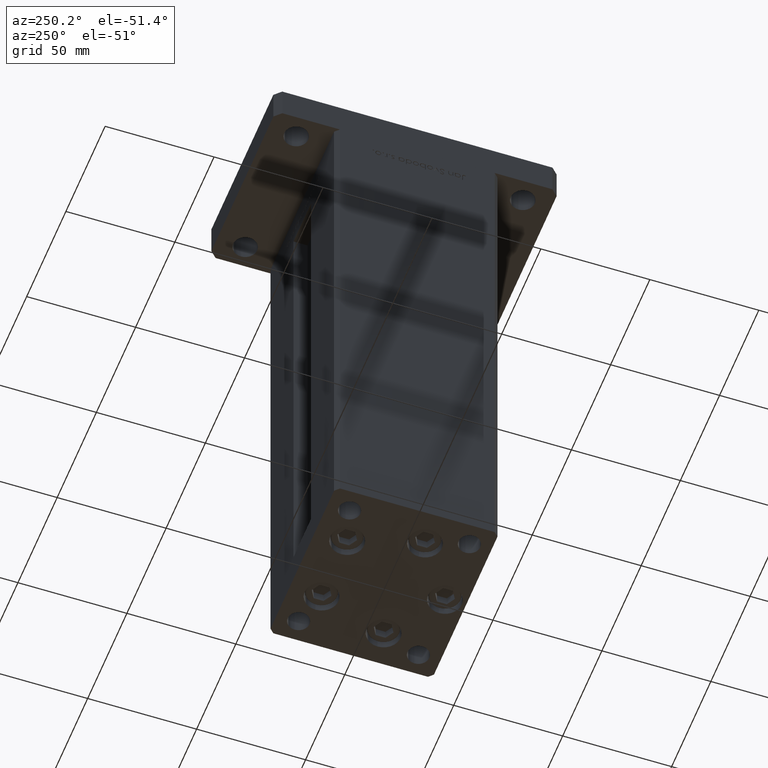
[diagram: clean part render]
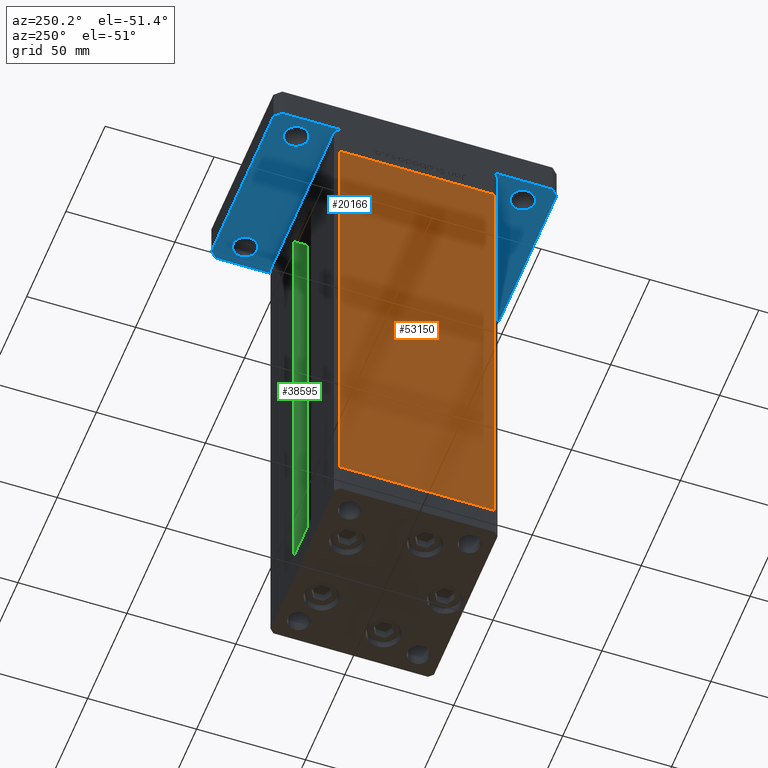
[diagram: same view with three faces highlighted in distinct colors, each labeled with its STEP entity id]
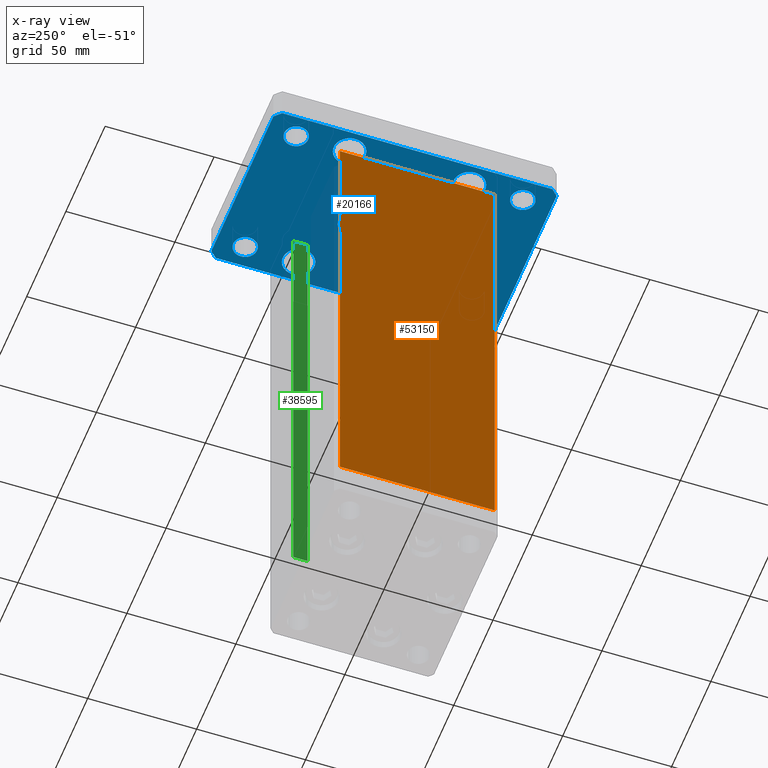
[diagram: x-ray of the same camera — body ghosted, the three highlighted faces saturated]
A machine part, auxiliary view with three faces highlighted in distinct colors.
The next image is the same camera in x-ray (body ghosted, the three faces saturated) — at least one of them is partly hidden behind the body in this view.
Their STEP definitions:

[orange] entity #53150 — the highlighted planar face has unit normal (1, 0, 0).
#1494 = LINE ( 'NONE', #10175, #15396 ) ;
#5783 = VERTEX_POINT ( 'NONE', #16046 ) ;
#6851 = DIRECTION ( 'NONE',  ( 1.000000000000000000, 2.931927001650941360E-16, -0.000000000000000000 ) ) ;
#10175 = CARTESIAN_POINT ( 'NONE',  ( -42.49999999999998579, -35.50000000000000711, 218.5000000000000000 ) ) ;
#10752 = VERTEX_POINT ( 'NONE', #35012 ) ;
#10982 = AXIS2_PLACEMENT_3D ( 'NONE', #14720, #6851, #51852 ) ;
#11081 = DIRECTION ( 'NONE',  ( 2.931927001650941360E-16, -1.000000000000000000, 0.000000000000000000 ) ) ;
#13065 = CARTESIAN_POINT ( 'NONE',  ( -42.50000000000000711, 35.50000000000001421, 218.5000000000000000 ) ) ;
#14114 = EDGE_CURVE ( 'NONE', #10752, #5783, #32452, .T. ) ;
#14720 = CARTESIAN_POINT ( 'NONE',  ( -42.50000000000000711, 35.50000000000001421, 218.5000000000000000 ) ) ;
#15396 = VECTOR ( 'NONE', #18027, 1000.000000000000000 ) ;
#15418 = CARTESIAN_POINT ( 'NONE',  ( -42.50000000000000711, 35.50000000000001421, 0.000000000000000000 ) ) ;
#16046 = CARTESIAN_POINT ( 'NONE',  ( -42.49999999999998579, -35.50000000000000711, 0.000000000000000000 ) ) ;
#17189 = VECTOR ( 'NONE', #11081, 1000.000000000000000 ) ;
#18027 = DIRECTION ( 'NONE',  ( -0.000000000000000000, -0.000000000000000000, -1.000000000000000000 ) ) ;
#18493 = DIRECTION ( 'NONE',  ( -0.000000000000000000, -0.000000000000000000, -1.000000000000000000 ) ) ;
#18541 = EDGE_CURVE ( 'NONE', #42156, #26485, #52017, .T. ) ;
#20539 = DIRECTION ( 'NONE',  ( 2.931927001650941360E-16, -1.000000000000000000, 0.000000000000000000 ) ) ;
#21350 = CARTESIAN_POINT ( 'NONE',  ( -42.50000000000000711, 35.50000000000001421, 218.5000000000000000 ) ) ;
#23240 = ORIENTED_EDGE ( 'NONE', *, *, #38922, .T. ) ;
#26352 = CARTESIAN_POINT ( 'NONE',  ( -42.50000000000000711, 35.50000000000001421, 218.5000000000000000 ) ) ;
#26485 = VERTEX_POINT ( 'NONE', #46622 ) ;
#27445 = PLANE ( 'NONE',  #10982 ) ;
#29875 = ORIENTED_EDGE ( 'NONE', *, *, #14114, .T. ) ;
#32452 = LINE ( 'NONE', #15418, #17189 ) ;
#35012 = CARTESIAN_POINT ( 'NONE',  ( -42.50000000000000711, 35.50000000000001421, 0.000000000000000000 ) ) ;
#38117 = ORIENTED_EDGE ( 'NONE', *, *, #18541, .F. ) ;
#38922 = EDGE_CURVE ( 'NONE', #42156, #10752, #43183, .T. ) ;
#40191 = FACE_OUTER_BOUND ( 'NONE', #47179, .T. ) ;
#42156 = VERTEX_POINT ( 'NONE', #13065 ) ;
#43183 = LINE ( 'NONE', #26352, #45489 ) ;
#44623 = EDGE_CURVE ( 'NONE', #26485, #5783, #1494, .T. ) ;
#45008 = VECTOR ( 'NONE', #20539, 1000.000000000000000 ) ;
#45489 = VECTOR ( 'NONE', #18493, 1000.000000000000000 ) ;
#46137 = ORIENTED_EDGE ( 'NONE', *, *, #44623, .F. ) ;
#46622 = CARTESIAN_POINT ( 'NONE',  ( -42.49999999999998579, -35.50000000000000711, 218.5000000000000000 ) ) ;
#47179 = EDGE_LOOP ( 'NONE', ( #29875, #46137, #38117, #23240 ) ) ;
#51852 = DIRECTION ( 'NONE',  ( -2.931927001650941360E-16, 1.000000000000000000, 0.000000000000000000 ) ) ;
#52017 = LINE ( 'NONE', #21350, #45008 ) ;
#53150 = ADVANCED_FACE ( 'NONE', ( #40191 ), #27445, .F. ) ;

[blue] entity #20166 — the highlighted planar face has unit normal (0, 0, 1).
#129 = CARTESIAN_POINT ( 'NONE',  ( 0.000000000000000000, 0.000000000000000000, 0.000000000000000000 ) ) ;
#511 = CIRCLE ( 'NONE', #37722, 7.249999999999999112 ) ;
#583 = LINE ( 'NONE', #32823, #12419 ) ;
#751 = VERTEX_POINT ( 'NONE', #36892 ) ;
#878 = ORIENTED_EDGE ( 'NONE', *, *, #41326, .T. ) ;
#1370 = CARTESIAN_POINT ( 'NONE',  ( -32.50000000000000000, 52.00000000000000000, 0.000000000000000000 ) ) ;
#2012 = CARTESIAN_POINT ( 'NONE',  ( 32.50000000000000000, -27.50000000000000000, 0.000000000000000000 ) ) ;
#2030 = AXIS2_PLACEMENT_3D ( 'NONE', #25977, #42527, #21916 ) ;
#2180 = FACE_BOUND ( 'NONE', #7526, .T. ) ;
#2299 = DIRECTION ( 'NONE',  ( -1.000000000000000000, -3.513364001978340512E-16, 0.000000000000000000 ) ) ;
#2374 = ORIENTED_EDGE ( 'NONE', *, *, #40247, .F. ) ;
#2453 = PLANE ( 'NONE',  #43341 ) ;
#2780 = DIRECTION ( 'NONE',  ( 1.000000000000000000, 1.405345600791337191E-15, 0.000000000000000000 ) ) ;
#2979 = FACE_BOUND ( 'NONE', #14745, .T. ) ;
#3331 = VERTEX_POINT ( 'NONE', #25314 ) ;
#3583 = VERTEX_POINT ( 'NONE', #5915 ) ;
#3649 = CARTESIAN_POINT ( 'NONE',  ( -25.25000000000000000, -27.50000000000000000, 0.000000000000000000 ) ) ;
#3859 = CARTESIAN_POINT ( 'NONE',  ( 32.50000000000000000, 27.50000000000000000, 0.000000000000000000 ) ) ;
#4002 = CIRCLE ( 'NONE', #26475, 5.499999999999991118 ) ;
#4059 = DIRECTION ( 'NONE',  ( 0.000000000000000000, 0.000000000000000000, 1.000000000000000000 ) ) ;
#4206 = DIRECTION ( 'NONE',  ( 0.000000000000000000, 0.000000000000000000, 1.000000000000000000 ) ) ;
#4577 = CARTESIAN_POINT ( 'NONE',  ( 32.50000000000000000, 51.99999999999999289, 0.000000000000000000 ) ) ;
#4797 = VERTEX_POINT ( 'NONE', #19029 ) ;
#4875 = EDGE_CURVE ( 'NONE', #751, #39949, #7366, .T. ) ;
#4877 = ORIENTED_EDGE ( 'NONE', *, *, #48344, .F. ) ;
#5177 = CARTESIAN_POINT ( 'NONE',  ( 32.50000000000000000, 27.50000000000000000, 0.000000000000000000 ) ) ;
#5264 = ORIENTED_EDGE ( 'NONE', *, *, #12280, .T. ) ;
#5286 = ORIENTED_EDGE ( 'NONE', *, *, #9639, .T. ) ;
#5357 = VERTEX_POINT ( 'NONE', #38903 ) ;
#5788 = DIRECTION ( 'NONE',  ( 0.000000000000000000, 0.000000000000000000, 1.000000000000000000 ) ) ;
#5846 = CARTESIAN_POINT ( 'NONE',  ( 32.50000000000000000, 51.99999999999999289, 0.000000000000000000 ) ) ;
#5915 = CARTESIAN_POINT ( 'NONE',  ( -25.25000000000000711, 27.50000000000000000, 0.000000000000000000 ) ) ;
#6035 = CARTESIAN_POINT ( 'NONE',  ( 25.25000000000000000, -27.50000000000000000, 0.000000000000000000 ) ) ;
#6530 = LINE ( 'NONE', #23067, #18882 ) ;
#6637 = AXIS2_PLACEMENT_3D ( 'NONE', #12209, #4059, #16803 ) ;
#6841 = EDGE_CURVE ( 'NONE', #38908, #32571, #20290, .T. ) ;
#7049 = CARTESIAN_POINT ( 'NONE',  ( -39.75000000000000000, -27.50000000000000000, 0.000000000000000000 ) ) ;
#7189 = CIRCLE ( 'NONE', #8936, 5.499999999999994671 ) ;
#7216 = CIRCLE ( 'NONE', #2030, 5.499999999999994671 ) ;
#7363 = DIRECTION ( 'NONE',  ( -0.7071067811865417996, 0.7071067811865532349, 0.000000000000000000 ) ) ;
#7366 = LINE ( 'NONE', #19832, #41053 ) ;
#7433 = ORIENTED_EDGE ( 'NONE', *, *, #8279, .F. ) ;
#7459 = AXIS2_PLACEMENT_3D ( 'NONE', #1370, #38499, #43382 ) ;
#7526 = EDGE_LOOP ( 'NONE', ( #21143, #13021 ) ) ;
#7655 = DIRECTION ( 'NONE',  ( 0.000000000000000000, 0.000000000000000000, 1.000000000000000000 ) ) ;
#7682 = DIRECTION ( 'NONE',  ( 1.000000000000000000, 0.000000000000000000, 0.000000000000000000 ) ) ;
#7723 = ORIENTED_EDGE ( 'NONE', *, *, #42505, .T. ) ;
#7897 = DIRECTION ( 'NONE',  ( 0.7071067811865459074, 0.7071067811865491270, 0.000000000000000000 ) ) ;
#7987 = CARTESIAN_POINT ( 'NONE',  ( -20.00000000000000000, 0.000000000000000000, 0.000000000000000000 ) ) ;
#8279 = EDGE_CURVE ( 'NONE', #20764, #44886, #51537, .T. ) ;
#8936 = AXIS2_PLACEMENT_3D ( 'NONE', #38712, #39513, #18909 ) ;
#9075 = ORIENTED_EDGE ( 'NONE', *, *, #30083, .T. ) ;
#9370 = ORIENTED_EDGE ( 'NONE', *, *, #4875, .F. ) ;
#9639 = EDGE_CURVE ( 'NONE', #32571, #38908, #511, .T. ) ;
#9746 = AXIS2_PLACEMENT_3D ( 'NONE', #5846, #22383, #38918 ) ;
#9881 = ORIENTED_EDGE ( 'NONE', *, *, #28497, .F. ) ;
#10334 = FACE_BOUND ( 'NONE', #26934, .T. ) ;
#10420 = AXIS2_PLACEMENT_3D ( 'NONE', #15846, #32361, #48909 ) ;
#10438 = CARTESIAN_POINT ( 'NONE',  ( 39.50000000000002842, 65.00000000000002842, 0.000000000000000000 ) ) ;
#10521 = VERTEX_POINT ( 'NONE', #21220 ) ;
#11131 = DIRECTION ( 'NONE',  ( 1.000000000000000000, 0.000000000000000000, -0.000000000000000000 ) ) ;
#11483 = DIRECTION ( 'NONE',  ( 0.000000000000000000, 0.000000000000000000, 1.000000000000000000 ) ) ;
#12008 = EDGE_CURVE ( 'NONE', #29792, #37107, #36371, .T. ) ;
#12209 = CARTESIAN_POINT ( 'NONE',  ( -32.50000000000000711, 27.50000000000000000, 0.000000000000000000 ) ) ;
#12232 = VERTEX_POINT ( 'NONE', #46921 ) ;
#12280 = EDGE_CURVE ( 'NONE', #12998, #12232, #43838, .T. ) ;
#12419 = VECTOR ( 'NONE', #7897, 1000.000000000000114 ) ;
#12501 = DIRECTION ( 'NONE',  ( 2.238352872228137677E-16, -1.000000000000000000, 0.000000000000000000 ) ) ;
#12998 = VERTEX_POINT ( 'NONE', #38520 ) ;
#13021 = ORIENTED_EDGE ( 'NONE', *, *, #31624, .T. ) ;
#13145 = EDGE_CURVE ( 'NONE', #42723, #751, #6530, .T. ) ;
#13663 = CARTESIAN_POINT ( 'NONE',  ( -32.50000000000000711, 27.50000000000000000, 0.000000000000000000 ) ) ;
#13887 = CIRCLE ( 'NONE', #10420, 7.249999999999999112 ) ;
#13958 = CIRCLE ( 'NONE', #30400, 5.499999999999994671 ) ;
#14302 = CIRCLE ( 'NONE', #21225, 7.249999999999999112 ) ;
#14745 = EDGE_LOOP ( 'NONE', ( #7723, #48129 ) ) ;
#15500 = EDGE_LOOP ( 'NONE', ( #29601, #5264 ) ) ;
#15795 = VECTOR ( 'NONE', #7363, 1000.000000000000000 ) ;
#15846 = CARTESIAN_POINT ( 'NONE',  ( -32.50000000000000000, -27.50000000000000000, 0.000000000000000000 ) ) ;
#15999 = LINE ( 'NONE', #28993, #32467 ) ;
#16069 = ORIENTED_EDGE ( 'NONE', *, *, #24711, .F. ) ;
#16289 = VERTEX_POINT ( 'NONE', #40136 ) ;
#16432 = ORIENTED_EDGE ( 'NONE', *, *, #35455, .T. ) ;
#16622 = ORIENTED_EDGE ( 'NONE', *, *, #32818, .T. ) ;
#16796 = LINE ( 'NONE', #24935, #51559 ) ;
#16803 = DIRECTION ( 'NONE',  ( 1.000000000000000000, 0.000000000000000000, 0.000000000000000000 ) ) ;
#17476 = ORIENTED_EDGE ( 'NONE', *, *, #19976, .T. ) ;
#17729 = CARTESIAN_POINT ( 'NONE',  ( 26.99999999999998579, -52.00000000000000711, 0.000000000000000000 ) ) ;
#18097 = EDGE_LOOP ( 'NONE', ( #21216, #4877, #9370, #31308, #49154, #16069, #2374, #9881 ) ) ;
#18179 = DIRECTION ( 'NONE',  ( 1.000000000000000000, 0.000000000000000000, 0.000000000000000000 ) ) ;
#18882 = VECTOR ( 'NONE', #52874, 1000.000000000000000 ) ;
#18909 = DIRECTION ( 'NONE',  ( 1.000000000000000000, 0.000000000000000000, 0.000000000000000000 ) ) ;
#19029 = CARTESIAN_POINT ( 'NONE',  ( 27.00000000000001421, 51.99999999999999289, 0.000000000000000000 ) ) ;
#19252 = FACE_BOUND ( 'NONE', #15500, .T. ) ;
#19832 = CARTESIAN_POINT ( 'NONE',  ( -42.50000000000002132, 62.00000000000000711, 0.000000000000000000 ) ) ;
#19976 = EDGE_CURVE ( 'NONE', #34523, #20144, #13887, .T. ) ;
#20144 = VERTEX_POINT ( 'NONE', #7049 ) ;
#20166 = ADVANCED_FACE ( 'NONE', ( #31714, #39594, #2180, #47462, #34228, #23318, #39860, #19252, #2979, #10334 ), #2453, .F. ) ;
#20196 = DIRECTION ( 'NONE',  ( 0.000000000000000000, 0.000000000000000000, 1.000000000000000000 ) ) ;
#20290 = CIRCLE ( 'NONE', #31553, 7.249999999999999112 ) ;
#20461 = AXIS2_PLACEMENT_3D ( 'NONE', #5177, #34163, #18179 ) ;
#20647 = VERTEX_POINT ( 'NONE', #48124 ) ;
#20764 = VERTEX_POINT ( 'NONE', #7987 ) ;
#21004 = EDGE_LOOP ( 'NONE', ( #7433, #47945 ) ) ;
#21143 = ORIENTED_EDGE ( 'NONE', *, *, #32340, .T. ) ;
#21216 = ORIENTED_EDGE ( 'NONE', *, *, #12008, .F. ) ;
#21220 = CARTESIAN_POINT ( 'NONE',  ( 37.99999999999997868, -52.00000000000000711, 0.000000000000000000 ) ) ;
#21225 = AXIS2_PLACEMENT_3D ( 'NONE', #13663, #5788, #22326 ) ;
#21545 = CARTESIAN_POINT ( 'NONE',  ( 32.49999999999997868, -52.00000000000000711, 0.000000000000000000 ) ) ;
#21566 = VERTEX_POINT ( 'NONE', #17729 ) ;
#21916 = DIRECTION ( 'NONE',  ( 1.000000000000000000, 0.000000000000000000, 0.000000000000000000 ) ) ;
#22268 = DIRECTION ( 'NONE',  ( 0.000000000000000000, 0.000000000000000000, -1.000000000000000000 ) ) ;
#22326 = DIRECTION ( 'NONE',  ( 1.000000000000000000, 0.000000000000000000, 0.000000000000000000 ) ) ;
#22361 = EDGE_LOOP ( 'NONE', ( #26157, #47425 ) ) ;
#22367 = EDGE_CURVE ( 'NONE', #26755, #5357, #13958, .T. ) ;
#22383 = DIRECTION ( 'NONE',  ( 0.000000000000000000, 0.000000000000000000, 1.000000000000000000 ) ) ;
#23067 = CARTESIAN_POINT ( 'NONE',  ( -39.50000000000003553, 65.00000000000000000, 0.000000000000000000 ) ) ;
#23164 = LINE ( 'NONE', #10438, #53230 ) ;
#23318 = FACE_BOUND ( 'NONE', #27295, .T. ) ;
#23343 = VERTEX_POINT ( 'NONE', #23541 ) ;
#23541 = CARTESIAN_POINT ( 'NONE',  ( 37.99999999999999289, 51.99999999999999289, 0.000000000000000000 ) ) ;
#24711 = EDGE_CURVE ( 'NONE', #16289, #43477, #52902, .T. ) ;
#24935 = CARTESIAN_POINT ( 'NONE',  ( 42.50000000000000000, -61.99999999999988631, 0.000000000000000000 ) ) ;
#25086 = EDGE_CURVE ( 'NONE', #12232, #12998, #43489, .T. ) ;
#25314 = CARTESIAN_POINT ( 'NONE',  ( -26.99999999999998579, -52.00000000000000711, 0.000000000000000000 ) ) ;
#25411 = AXIS2_PLACEMENT_3D ( 'NONE', #46195, #45933, #37524 ) ;
#25977 = CARTESIAN_POINT ( 'NONE',  ( -32.49999999999997868, -52.00000000000000711, 0.000000000000000000 ) ) ;
#26120 = CARTESIAN_POINT ( 'NONE',  ( -39.50000000000003553, 65.00000000000000000, 0.000000000000000000 ) ) ;
#26157 = ORIENTED_EDGE ( 'NONE', *, *, #50744, .T. ) ;
#26475 = AXIS2_PLACEMENT_3D ( 'NONE', #4577, #34098, #38450 ) ;
#26755 = VERTEX_POINT ( 'NONE', #47877 ) ;
#26849 = DIRECTION ( 'NONE',  ( 0.000000000000000000, 0.000000000000000000, 1.000000000000000000 ) ) ;
#26934 = EDGE_LOOP ( 'NONE', ( #16432, #16622 ) ) ;
#27267 = AXIS2_PLACEMENT_3D ( 'NONE', #46407, #22268, #38805 ) ;
#27295 = EDGE_LOOP ( 'NONE', ( #50213, #17476 ) ) ;
#27900 = CARTESIAN_POINT ( 'NONE',  ( -37.99999999999997868, -52.00000000000000711, 0.000000000000000000 ) ) ;
#28497 = EDGE_CURVE ( 'NONE', #37107, #20647, #583, .T. ) ;
#28865 = DIRECTION ( 'NONE',  ( 1.000000000000000000, 0.000000000000000000, 0.000000000000000000 ) ) ;
#28927 = CIRCLE ( 'NONE', #35849, 5.499999999999998224 ) ;
#28993 = CARTESIAN_POINT ( 'NONE',  ( -42.49999999999999289, -62.00000000000001421, 0.000000000000000000 ) ) ;
#29316 = CARTESIAN_POINT ( 'NONE',  ( 32.50000000000000000, -27.50000000000000000, 0.000000000000000000 ) ) ;
#29601 = ORIENTED_EDGE ( 'NONE', *, *, #25086, .T. ) ;
#29625 = AXIS2_PLACEMENT_3D ( 'NONE', #3859, #11483, #7682 ) ;
#29720 = CARTESIAN_POINT ( 'NONE',  ( 39.75000000000000000, -27.50000000000000000, 0.000000000000000000 ) ) ;
#29792 = VERTEX_POINT ( 'NONE', #39519 ) ;
#30005 = CIRCLE ( 'NONE', #6637, 7.249999999999999112 ) ;
#30083 = EDGE_CURVE ( 'NONE', #23343, #4797, #32254, .T. ) ;
#30400 = AXIS2_PLACEMENT_3D ( 'NONE', #53012, #20196, #36727 ) ;
#30715 = EDGE_LOOP ( 'NONE', ( #50072, #5286 ) ) ;
#31186 = DIRECTION ( 'NONE',  ( 1.000000000000000000, 0.000000000000000000, 0.000000000000000000 ) ) ;
#31308 = ORIENTED_EDGE ( 'NONE', *, *, #13145, .F. ) ;
#31396 = VERTEX_POINT ( 'NONE', #27900 ) ;
#31553 = AXIS2_PLACEMENT_3D ( 'NONE', #29316, #7655, #37178 ) ;
#31624 = EDGE_CURVE ( 'NONE', #3331, #31396, #7189, .T. ) ;
#31714 = FACE_BOUND ( 'NONE', #21004, .T. ) ;
#32254 = CIRCLE ( 'NONE', #9746, 5.499999999999991118 ) ;
#32340 = EDGE_CURVE ( 'NONE', #31396, #3331, #7216, .T. ) ;
#32361 = DIRECTION ( 'NONE',  ( 0.000000000000000000, 0.000000000000000000, 1.000000000000000000 ) ) ;
#32467 = VECTOR ( 'NONE', #52877, 1000.000000000000000 ) ;
#32571 = VERTEX_POINT ( 'NONE', #29720 ) ;
#32639 = CARTESIAN_POINT ( 'NONE',  ( -42.49999999999999289, -62.00000000000001421, 0.000000000000000000 ) ) ;
#32818 = EDGE_CURVE ( 'NONE', #10521, #21566, #34016, .T. ) ;
#32823 = CARTESIAN_POINT ( 'NONE',  ( 39.50000000000001421, -64.99999999999988631, 0.000000000000000000 ) ) ;
#33654 = EDGE_CURVE ( 'NONE', #44886, #20764, #47930, .T. ) ;
#34016 = CIRCLE ( 'NONE', #25411, 5.499999999999998224 ) ;
#34098 = DIRECTION ( 'NONE',  ( 0.000000000000000000, 0.000000000000000000, 1.000000000000000000 ) ) ;
#34163 = DIRECTION ( 'NONE',  ( 0.000000000000000000, 0.000000000000000000, 1.000000000000000000 ) ) ;
#34228 = FACE_BOUND ( 'NONE', #22361, .T. ) ;
#34523 = VERTEX_POINT ( 'NONE', #3649 ) ;
#35455 = EDGE_CURVE ( 'NONE', #21566, #10521, #28927, .T. ) ;
#35849 = AXIS2_PLACEMENT_3D ( 'NONE', #21545, #4206, #28865 ) ;
#36003 = CIRCLE ( 'NONE', #38609, 7.249999999999999112 ) ;
#36371 = LINE ( 'NONE', #44260, #46431 ) ;
#36611 = CARTESIAN_POINT ( 'NONE',  ( 42.50000000000000000, 62.00000000000000711, 0.000000000000000000 ) ) ;
#36727 = DIRECTION ( 'NONE',  ( 1.000000000000000000, 0.000000000000000000, 0.000000000000000000 ) ) ;
#36892 = CARTESIAN_POINT ( 'NONE',  ( -42.50000000000002132, 62.00000000000000711, 0.000000000000000000 ) ) ;
#37001 = EDGE_CURVE ( 'NONE', #43477, #42723, #23164, .T. ) ;
#37107 = VERTEX_POINT ( 'NONE', #45369 ) ;
#37178 = DIRECTION ( 'NONE',  ( 1.000000000000000000, 0.000000000000000000, 0.000000000000000000 ) ) ;
#37524 = DIRECTION ( 'NONE',  ( 1.000000000000000000, 0.000000000000000000, 0.000000000000000000 ) ) ;
#37551 = AXIS2_PLACEMENT_3D ( 'NONE', #129, #45926, #44863 ) ;
#37722 = AXIS2_PLACEMENT_3D ( 'NONE', #2012, #43758, #47014 ) ;
#38450 = DIRECTION ( 'NONE',  ( 1.000000000000000000, 0.000000000000000000, 0.000000000000000000 ) ) ;
#38499 = DIRECTION ( 'NONE',  ( 0.000000000000000000, 0.000000000000000000, 1.000000000000000000 ) ) ;
#38520 = CARTESIAN_POINT ( 'NONE',  ( 39.75000000000000000, 27.50000000000000000, 0.000000000000000000 ) ) ;
#38609 = AXIS2_PLACEMENT_3D ( 'NONE', #52065, #26849, #31186 ) ;
#38712 = CARTESIAN_POINT ( 'NONE',  ( -32.49999999999997868, -52.00000000000000711, 0.000000000000000000 ) ) ;
#38805 = DIRECTION ( 'NONE',  ( -1.000000000000000000, 0.000000000000000000, 0.000000000000000000 ) ) ;
#38903 = CARTESIAN_POINT ( 'NONE',  ( -38.00000000000000000, 52.00000000000000000, 0.000000000000000000 ) ) ;
#38908 = VERTEX_POINT ( 'NONE', #6035 ) ;
#38918 = DIRECTION ( 'NONE',  ( 1.000000000000000000, 0.000000000000000000, 0.000000000000000000 ) ) ;
#39513 = DIRECTION ( 'NONE',  ( 0.000000000000000000, 0.000000000000000000, 1.000000000000000000 ) ) ;
#39519 = CARTESIAN_POINT ( 'NONE',  ( -39.50000000000000000, -65.00000000000000000, 0.000000000000000000 ) ) ;
#39594 = FACE_OUTER_BOUND ( 'NONE', #18097, .T. ) ;
#39860 = FACE_BOUND ( 'NONE', #30715, .T. ) ;
#39949 = VERTEX_POINT ( 'NONE', #32639 ) ;
#40128 = CARTESIAN_POINT ( 'NONE',  ( 0.000000000000000000, 0.000000000000000000, 0.000000000000000000 ) ) ;
#40136 = CARTESIAN_POINT ( 'NONE',  ( 42.50000000000000000, 62.00000000000000711, 0.000000000000000000 ) ) ;
#40247 = EDGE_CURVE ( 'NONE', #20647, #16289, #16796, .T. ) ;
#41053 = VECTOR ( 'NONE', #12501, 1000.000000000000000 ) ;
#41326 = EDGE_CURVE ( 'NONE', #4797, #23343, #4002, .T. ) ;
#42505 = EDGE_CURVE ( 'NONE', #46025, #3583, #30005, .T. ) ;
#42527 = DIRECTION ( 'NONE',  ( 0.000000000000000000, 0.000000000000000000, 1.000000000000000000 ) ) ;
#42723 = VERTEX_POINT ( 'NONE', #26120 ) ;
#43341 = AXIS2_PLACEMENT_3D ( 'NONE', #40128, #48259, #11131 ) ;
#43382 = DIRECTION ( 'NONE',  ( 1.000000000000000000, 0.000000000000000000, 0.000000000000000000 ) ) ;
#43477 = VERTEX_POINT ( 'NONE', #49003 ) ;
#43489 = CIRCLE ( 'NONE', #29625, 7.249999999999999112 ) ;
#43758 = DIRECTION ( 'NONE',  ( 0.000000000000000000, 0.000000000000000000, 1.000000000000000000 ) ) ;
#43838 = CIRCLE ( 'NONE', #20461, 7.249999999999999112 ) ;
#44260 = CARTESIAN_POINT ( 'NONE',  ( -39.50000000000000000, -65.00000000000000000, 0.000000000000000000 ) ) ;
#44863 = DIRECTION ( 'NONE',  ( -1.000000000000000000, 0.000000000000000000, 0.000000000000000000 ) ) ;
#44886 = VERTEX_POINT ( 'NONE', #50233 ) ;
#45259 = DIRECTION ( 'NONE',  ( 0.000000000000000000, 1.000000000000000000, 0.000000000000000000 ) ) ;
#45369 = CARTESIAN_POINT ( 'NONE',  ( 39.50000000000001421, -64.99999999999988631, 0.000000000000000000 ) ) ;
#45926 = DIRECTION ( 'NONE',  ( 0.000000000000000000, 0.000000000000000000, -1.000000000000000000 ) ) ;
#45933 = DIRECTION ( 'NONE',  ( 0.000000000000000000, 0.000000000000000000, 1.000000000000000000 ) ) ;
#46025 = VERTEX_POINT ( 'NONE', #52664 ) ;
#46195 = CARTESIAN_POINT ( 'NONE',  ( 32.49999999999997868, -52.00000000000000711, 0.000000000000000000 ) ) ;
#46407 = CARTESIAN_POINT ( 'NONE',  ( 0.000000000000000000, 0.000000000000000000, 0.000000000000000000 ) ) ;
#46431 = VECTOR ( 'NONE', #2780, 1000.000000000000000 ) ;
#46921 = CARTESIAN_POINT ( 'NONE',  ( 25.25000000000000000, 27.50000000000000000, 0.000000000000000000 ) ) ;
#47014 = DIRECTION ( 'NONE',  ( 1.000000000000000000, 0.000000000000000000, 0.000000000000000000 ) ) ;
#47425 = ORIENTED_EDGE ( 'NONE', *, *, #22367, .T. ) ;
#47462 = FACE_BOUND ( 'NONE', #52221, .T. ) ;
#47474 = EDGE_CURVE ( 'NONE', #20144, #34523, #36003, .T. ) ;
#47877 = CARTESIAN_POINT ( 'NONE',  ( -27.00000000000000711, 52.00000000000000000, 0.000000000000000000 ) ) ;
#47930 = CIRCLE ( 'NONE', #37551, 20.00000000000000000 ) ;
#47945 = ORIENTED_EDGE ( 'NONE', *, *, #33654, .F. ) ;
#47953 = EDGE_CURVE ( 'NONE', #3583, #46025, #14302, .T. ) ;
#48124 = CARTESIAN_POINT ( 'NONE',  ( 42.50000000000000000, -61.99999999999988631, 0.000000000000000000 ) ) ;
#48129 = ORIENTED_EDGE ( 'NONE', *, *, #47953, .T. ) ;
#48259 = DIRECTION ( 'NONE',  ( 0.000000000000000000, 0.000000000000000000, 1.000000000000000000 ) ) ;
#48344 = EDGE_CURVE ( 'NONE', #39949, #29792, #15999, .T. ) ;
#48909 = DIRECTION ( 'NONE',  ( 1.000000000000000000, 0.000000000000000000, 0.000000000000000000 ) ) ;
#49003 = CARTESIAN_POINT ( 'NONE',  ( 39.50000000000002842, 65.00000000000002842, 0.000000000000000000 ) ) ;
#49008 = CIRCLE ( 'NONE', #7459, 5.499999999999994671 ) ;
#49154 = ORIENTED_EDGE ( 'NONE', *, *, #37001, .F. ) ;
#50072 = ORIENTED_EDGE ( 'NONE', *, *, #6841, .T. ) ;
#50213 = ORIENTED_EDGE ( 'NONE', *, *, #47474, .T. ) ;
#50233 = CARTESIAN_POINT ( 'NONE',  ( 20.00000000000000000, 2.449293598294706513E-15, 0.000000000000000000 ) ) ;
#50744 = EDGE_CURVE ( 'NONE', #5357, #26755, #49008, .T. ) ;
#51537 = CIRCLE ( 'NONE', #27267, 20.00000000000000000 ) ;
#51559 = VECTOR ( 'NONE', #45259, 1000.000000000000000 ) ;
#52065 = CARTESIAN_POINT ( 'NONE',  ( -32.50000000000000000, -27.50000000000000000, 0.000000000000000000 ) ) ;
#52221 = EDGE_LOOP ( 'NONE', ( #878, #9075 ) ) ;
#52664 = CARTESIAN_POINT ( 'NONE',  ( -39.75000000000000711, 27.50000000000000000, 0.000000000000000000 ) ) ;
#52874 = DIRECTION ( 'NONE',  ( -0.7071067811865466846, -0.7071067811865483499, 0.000000000000000000 ) ) ;
#52877 = DIRECTION ( 'NONE',  ( 0.7071067811865483499, -0.7071067811865466846, 0.000000000000000000 ) ) ;
#52902 = LINE ( 'NONE', #36611, #15795 ) ;
#53012 = CARTESIAN_POINT ( 'NONE',  ( -32.50000000000000000, 52.00000000000000000, 0.000000000000000000 ) ) ;
#53230 = VECTOR ( 'NONE', #2299, 1000.000000000000000 ) ;

[green] entity #38595 — the highlighted planar face has unit normal (1, 0, 0).
#124 = DIRECTION ( 'NONE',  ( -0.000000000000000000, -1.000000000000000000, 0.000000000000000000 ) ) ;
#8109 = VECTOR ( 'NONE', #17713, 1000.000000000000000 ) ;
#10575 = CARTESIAN_POINT ( 'NONE',  ( 11.25000000000000000, 30.99999999999999289, 0.000000000000000000 ) ) ;
#13342 = CARTESIAN_POINT ( 'NONE',  ( 11.25000000000000000, 30.99999999999999289, 0.000000000000000000 ) ) ;
#15566 = ORIENTED_EDGE ( 'NONE', *, *, #37991, .F. ) ;
#16386 = EDGE_CURVE ( 'NONE', #18262, #19719, #40927, .T. ) ;
#17113 = ORIENTED_EDGE ( 'NONE', *, *, #33748, .F. ) ;
#17713 = DIRECTION ( 'NONE',  ( 0.000000000000000000, 1.000000000000000000, 0.000000000000000000 ) ) ;
#17739 = AXIS2_PLACEMENT_3D ( 'NONE', #10575, #47444, #30896 ) ;
#18262 = VERTEX_POINT ( 'NONE', #34399 ) ;
#19719 = VERTEX_POINT ( 'NONE', #20203 ) ;
#20203 = CARTESIAN_POINT ( 'NONE',  ( 11.24999999999999289, 37.50000000000000000, 218.5000000000000000 ) ) ;
#21276 = VECTOR ( 'NONE', #44379, 1000.000000000000000 ) ;
#24682 = VECTOR ( 'NONE', #124, 1000.000000000000000 ) ;
#25087 = VECTOR ( 'NONE', #52868, 1000.000000000000000 ) ;
#25246 = EDGE_LOOP ( 'NONE', ( #25513, #17113, #49789, #15566 ) ) ;
#25513 = ORIENTED_EDGE ( 'NONE', *, *, #16386, .F. ) ;
#26209 = VERTEX_POINT ( 'NONE', #13342 ) ;
#30709 = CARTESIAN_POINT ( 'NONE',  ( 11.25000000000000000, 30.99999999999999289, 0.000000000000000000 ) ) ;
#30896 = DIRECTION ( 'NONE',  ( 0.000000000000000000, 0.000000000000000000, -1.000000000000000000 ) ) ;
#31361 = LINE ( 'NONE', #39510, #21276 ) ;
#32364 = CARTESIAN_POINT ( 'NONE',  ( 11.25000000000000000, 0.000000000000000000, 218.5000000000000000 ) ) ;
#33748 = EDGE_CURVE ( 'NONE', #26209, #18262, #38317, .T. ) ;
#34399 = CARTESIAN_POINT ( 'NONE',  ( 11.25000000000000000, 37.50000000000000000, 0.000000000000000000 ) ) ;
#36661 = VERTEX_POINT ( 'NONE', #44368 ) ;
#37247 = LINE ( 'NONE', #32364, #24682 ) ;
#37991 = EDGE_CURVE ( 'NONE', #19719, #36661, #37247, .T. ) ;
#38317 = LINE ( 'NONE', #30709, #8109 ) ;
#38595 = ADVANCED_FACE ( 'NONE', ( #48242 ), #51497, .F. ) ;
#39510 = CARTESIAN_POINT ( 'NONE',  ( 11.25000000000000000, 30.99999999999999289, 0.000000000000000000 ) ) ;
#40927 = LINE ( 'NONE', #44466, #25087 ) ;
#44368 = CARTESIAN_POINT ( 'NONE',  ( 11.25000000000000000, 30.99999999999999289, 218.5000000000000000 ) ) ;
#44379 = DIRECTION ( 'NONE',  ( -0.000000000000000000, -0.000000000000000000, 1.000000000000000000 ) ) ;
#44466 = CARTESIAN_POINT ( 'NONE',  ( 11.25000000000000000, 37.50000000000000000, 0.000000000000000000 ) ) ;
#47444 = DIRECTION ( 'NONE',  ( 1.000000000000000000, -0.000000000000000000, 0.000000000000000000 ) ) ;
#48242 = FACE_OUTER_BOUND ( 'NONE', #25246, .T. ) ;
#49419 = EDGE_CURVE ( 'NONE', #26209, #36661, #31361, .T. ) ;
#49789 = ORIENTED_EDGE ( 'NONE', *, *, #49419, .T. ) ;
#51497 = PLANE ( 'NONE',  #17739 ) ;
#52868 = DIRECTION ( 'NONE',  ( -0.000000000000000000, -0.000000000000000000, 1.000000000000000000 ) ) ;